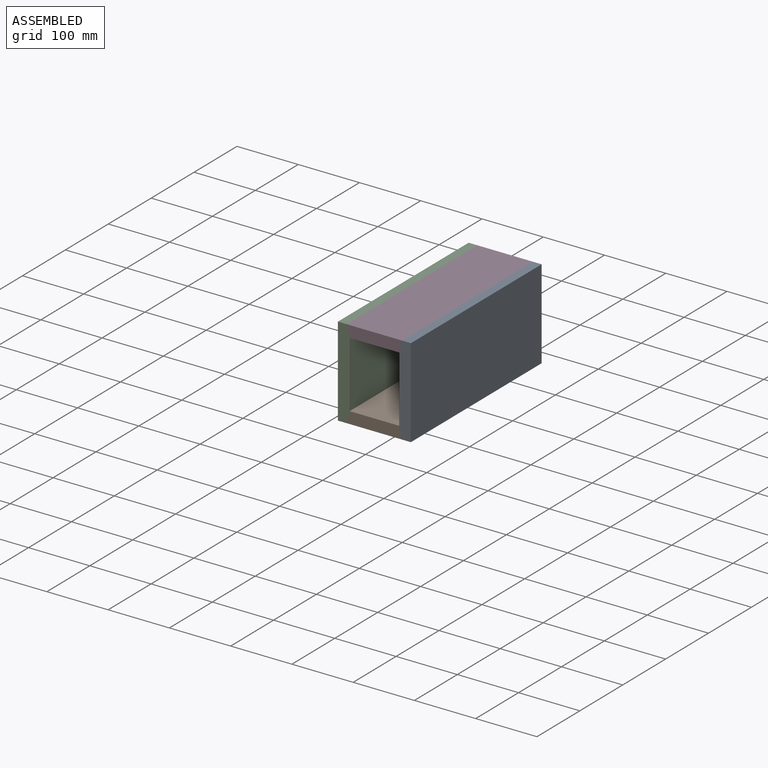
[diagram: assembled view]
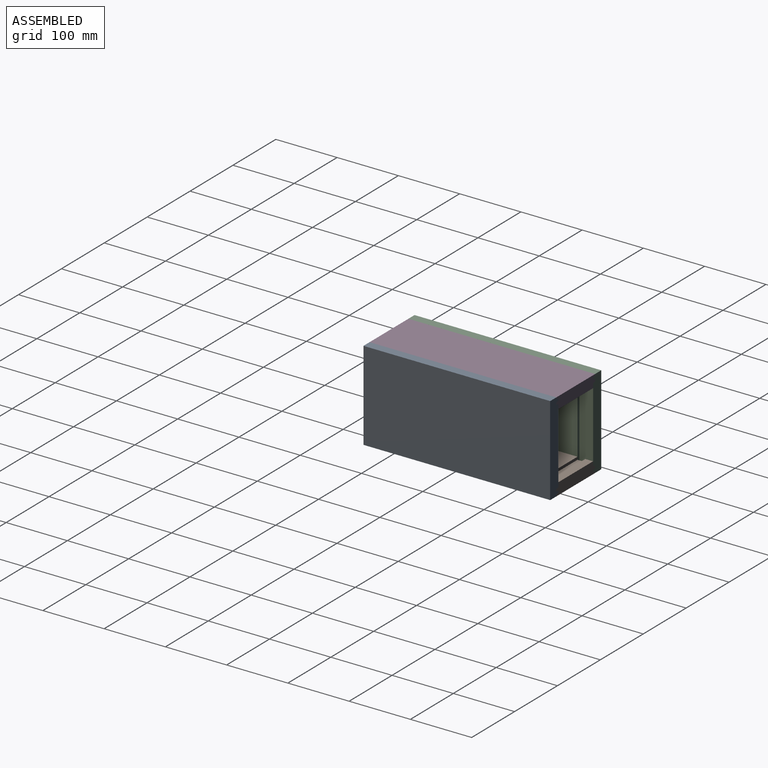
[diagram: assembled view, second angle]
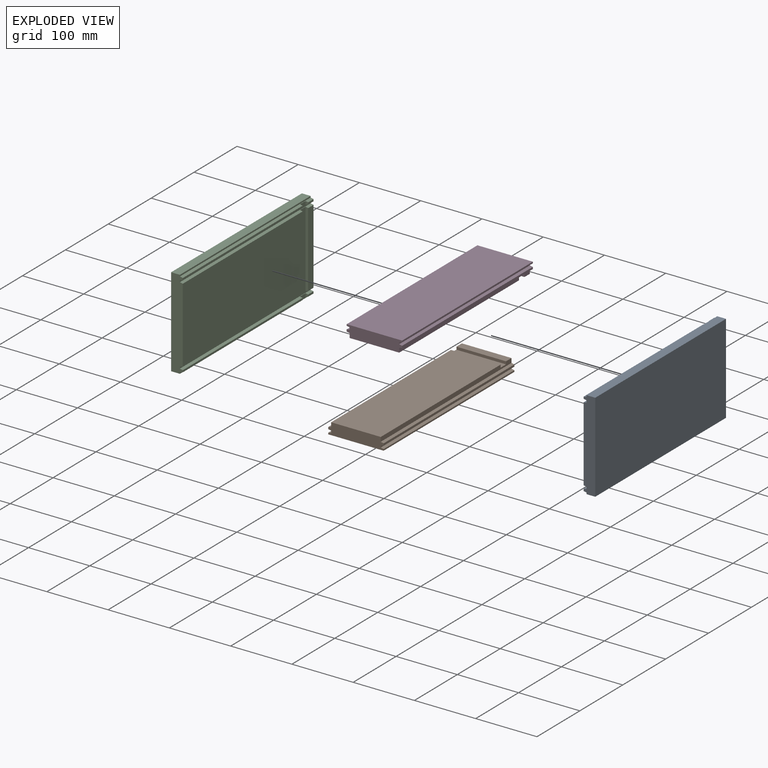
[diagram: exploded view]
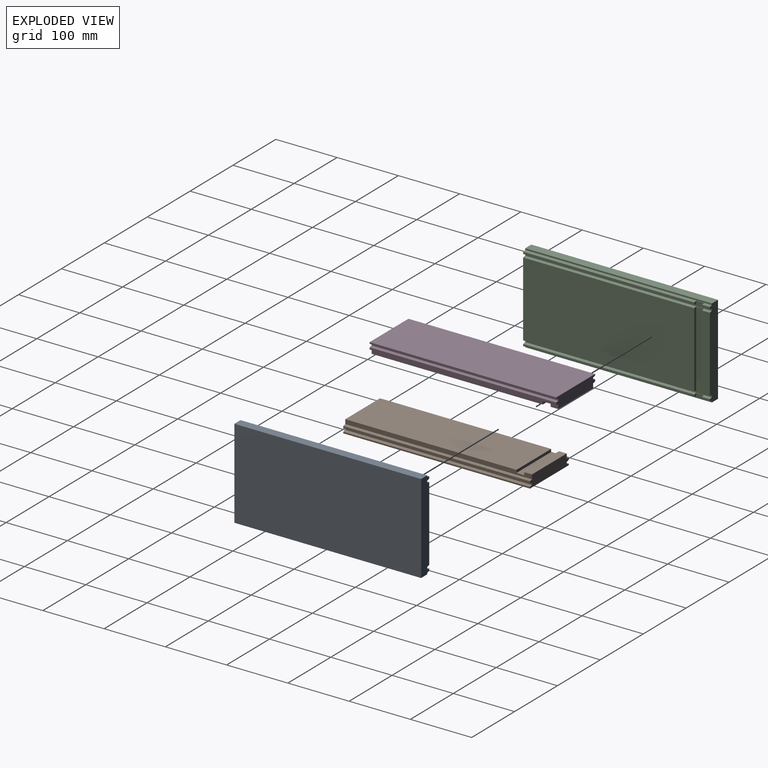
[diagram: exploded view, second angle]
ASSEMBLY  parts=4 mates=3
PART A: 30 faces, bbox 19.1x304.8x146.1 mm
  f0: plane 12.7x3.18mm, normal (1,0,0), area 40.3mm2, adj f7,f8,f11,f22
  f1: plane 122.22x12.7mm, normal (1,0,0), area 1552.3mm2, adj f3,f6,f11,f24
  f2: plane 12.7x3.18mm, normal (1,0,0), area 40.3mm2, adj f4,f5,f11,f28
  f3: plane 304.8x4.76mm, normal (0.22,0,0.98), area 1431.7mm2, adj f1,f10,f11,f13,f17,f24,f25,f26
  f4: plane 304.8x4.76mm, normal (0.22,0,-0.98), area 1431.7mm2, adj f2,f10,f11,f14,f17,f27,f28,f29
  f5: plane 304.8x4.76mm, normal (0.22,0,0.98), area 1431.7mm2, adj f2,f10,f11,f14,f18,f27,f28,f29
  f6: plane 304.8x4.76mm, normal (0.22,0,-0.98), area 1431.7mm2, adj f1,f10,f11,f13,f19,f24,f25,f26
  f7: plane 304.8x4.76mm, normal (0.22,0,0.98), area 1431.7mm2, adj f0,f9,f10,f11,f19,f21,f22,f23
  f8: plane 304.8x4.76mm, normal (0.22,0,-0.98), area 1431.7mm2, adj f0,f9,f10,f11,f20,f21,f22,f23
  f9: plane 279.4x3.18mm, normal (1,0,0), area 887.1mm2, adj f7,f8,f10,f21
  f10: plane 146.05x19.05mm, normal (0,-1,0), area 2714.1mm2, adj f3,f4,f5,f6,f7,f8,f9,f12
  f11: plane 146.05x19.05mm, normal (0,1,0), area 2714.1mm2, adj f0,f1,f2,f3,f4,f5,f6,f7
  f12: plane 304.8x14.29mm, normal (0,0,1), area 4354.8mm2, adj f10,f11,f15,f18
  f13: plane 279.4x122.22mm, normal (1,0,0), area 34149.6mm2, adj f3,f6,f10,f25
  f14: plane 279.4x3.18mm, normal (1,0,0), area 887.1mm2, adj f4,f5,f10,f29
  f15: plane 304.8x146.05mm, normal (-1,0,0), area 44516mm2, adj f10,f11,f12,f16
  f16: plane 304.8x14.29mm, normal (0,0,-1), area 4354.8mm2, adj f10,f11,f15,f20
  f17: plane 304.8x3.18mm, normal (1,0,0), area 967.7mm2, adj f3,f4,f10,f11
  f18: plane 304.8x2.39mm, normal (1,0,0), area 727.7mm2, adj f5,f10,f11,f12
  f19: plane 304.8x3.18mm, normal (1,0,0), area 967.7mm2, adj f6,f7,f10,f11
  f20: plane 304.8x2.39mm, normal (1,0,0), area 727.7mm2, adj f8,f10,f11,f16
  f21: plane 5.07x4.25mm, normal (0,1,0), area 17.5mm2, adj f7,f8,f9,f23
  f22: plane 5.07x4.25mm, normal (0,-1,0), area 17.5mm2, adj f0,f7,f8,f23
  f23: plane 12.7x5.07mm, normal (1,0,0), area 64.3mm2, adj f7,f8,f21,f22
  f24: plane 124.12x4.25mm, normal (0,-1,0), area 524mm2, adj f1,f3,f6,f26
  f25: plane 124.12x4.25mm, normal (0,1,0), area 524mm2, adj f3,f6,f13,f26
  f26: plane 124.12x12.7mm, normal (1,0,0), area 1576.3mm2, adj f3,f6,f24,f25
  f27: plane 12.7x5.07mm, normal (1,0,0), area 64.3mm2, adj f4,f5,f28,f29
  f28: plane 5.07x4.25mm, normal (0,-1,0), area 17.5mm2, adj f2,f4,f5,f27
  f29: plane 5.07x4.25mm, normal (0,1,0), area 17.5mm2, adj f4,f5,f14,f27
PART B: 22 faces, bbox 19.1x304.8x90.5 mm
  f0: plane 304.8x3.18mm, normal (0,0,1), area 967.7mm2, adj f7,f8,f18,f21
  f1: plane 80.96x12.7mm, normal (-1,0,0), area 1028.2mm2, adj f4,f8,f12,f17
  f2: plane 279.4x80.96mm, normal (-1,0,0), area 22620.9mm2, adj f5,f7,f12,f17
  f3: plane 80.96x12.7mm, normal (-1,0,0), area 1028.2mm2, adj f4,f5,f12,f17
  f4: plane 80.96x4.5mm, normal (0,-1,0), area 364mm2, adj f1,f3,f12,f17
  f5: plane 80.96x4.5mm, normal (0,1,0), area 364mm2, adj f2,f3,f12,f17
  f6: plane 304.8x3.18mm, normal (0,0,-1), area 967.7mm2, adj f7,f8,f13,f16
  f7: plane 90.49x19.05mm, normal (0,-1,0), area 1610.4mm2, adj f0,f2,f6,f9,f10,f11,f12,f13
  f8: plane 90.49x19.05mm, normal (0,1,0), area 1610.4mm2, adj f0,f1,f6,f9,f10,f11,f12,f13
  f9: plane 304.8x2.39mm, normal (0,0,1), area 727.7mm2, adj f7,f8,f11,f20
  f10: plane 304.8x2.39mm, normal (0,0,-1), area 727.7mm2, adj f7,f8,f11,f14
  f11: plane 304.8x90.49mm, normal (1,0,0), area 27580.6mm2, adj f7,f8,f9,f10
  f12: plane 304.8x7.14mm, normal (0,0,-1), area 2118.4mm2, adj f1,f2,f3,f4,f5,f7,f8,f13
  f13: plane 304.8x4.76mm, normal (-0.98,0,-0.22), area 1487mm2, adj f6,f7,f8,f12
  f14: plane 304.8x4.76mm, normal (-0.98,0,-0.22), area 1487mm2, adj f7,f8,f10,f15
  f15: plane 304.8x3.18mm, normal (0,0,-1), area 967.7mm2, adj f7,f8,f14,f16
  f16: plane 304.8x4.76mm, normal (0.98,0,-0.22), area 1487mm2, adj f6,f7,f8,f15
  f17: plane 304.8x7.14mm, normal (0,0,1), area 2118.4mm2, adj f1,f2,f3,f4,f5,f7,f8,f18
  f18: plane 304.8x4.76mm, normal (-0.98,0,0.22), area 1487mm2, adj f0,f7,f8,f17
  f19: plane 304.8x3.18mm, normal (0,0,1), area 967.7mm2, adj f7,f8,f20,f21
  f20: plane 304.8x4.76mm, normal (-0.98,0,0.22), area 1487mm2, adj f7,f8,f9,f19
  f21: plane 304.8x4.76mm, normal (0.98,0,0.22), area 1487mm2, adj f0,f7,f8,f19
PART C: same geometry as A
PART D: same geometry as B
PLACE A rot(axis=(0,1,0),180deg) t=(334.09,161.94,4.86)mm
PLACE B rot(axis=(0,1,0),90deg) t=(229.31,161.94,-122.14)mm
PLACE C t=(215.02,161.94,-141.19)mm fixed
PLACE D rot(axis=(0,-1,0),90deg) t=(319.8,161.94,-14.19)mm
MATE fastened C.f11 <-> B.f8  axis (0,1,0) through (229.31,161.94,-141.19)mm
MATE fastened D.f8 <-> A.f11  axis (0,1,0) through (319.8,161.94,4.86)mm
MATE fastened C.f11 <-> D.f8  axis (0,1,0) through (229.31,161.94,4.86)mm
